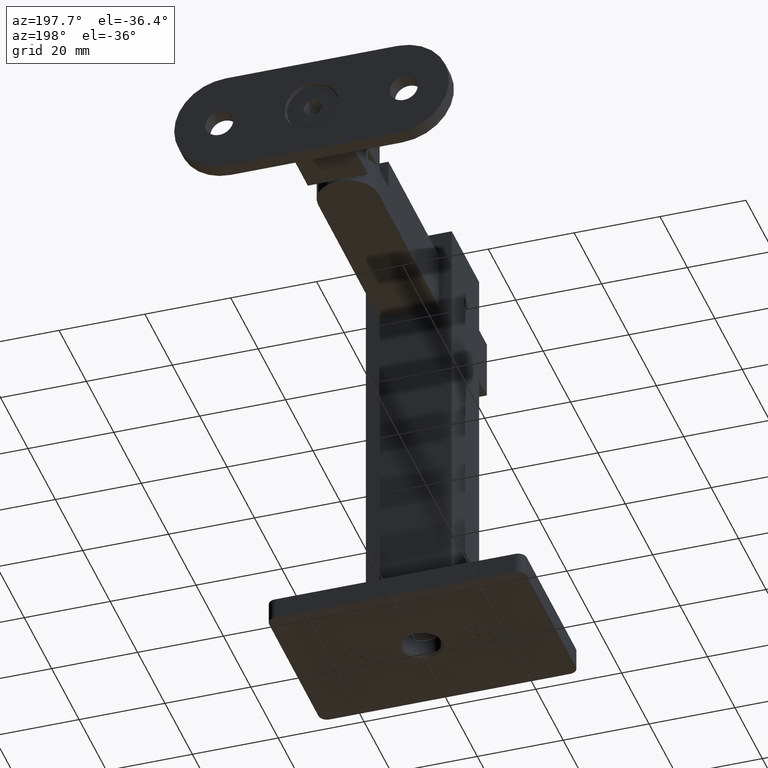
[diagram: clean part render]
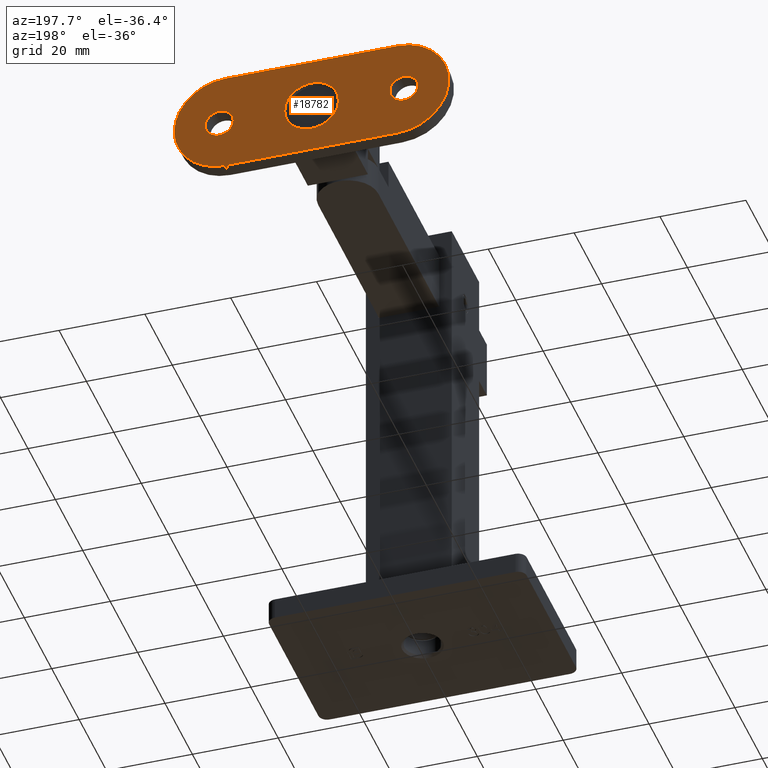
[diagram: same view with one face highlighted and labeled with its STEP entity id]
A machine part, auxiliary view. The second image highlights one B-rep face of the part: STEP entity #18782.
In plain terms, the highlighted planar face has unit normal (0, 1, 0).
Its self-contained STEP definition (entity closure, byte-faithful):
#128 = VECTOR ( 'NONE', #7599, 1000.000000000000000 ) ;
#256 = DIRECTION ( 'NONE',  ( 0.000000000000000000, -0.000000000000000000, 1.000000000000000000 ) ) ;
#320 = ORIENTED_EDGE ( 'NONE', *, *, #8067, .F. ) ;
#443 = CARTESIAN_POINT ( 'NONE',  ( 0.000000000000000000, 1.850000000000000089, -6.249999999999999112 ) ) ;
#999 = EDGE_CURVE ( 'NONE', #15415, #16751, #9626, .T. ) ;
#1553 = AXIS2_PLACEMENT_3D ( 'NONE', #19184, #4346, #14851 ) ;
#1718 = ORIENTED_EDGE ( 'NONE', *, *, #10989, .T. ) ;
#1857 = DIRECTION ( 'NONE',  ( 0.000000000000000000, 1.000000000000000000, 0.000000000000000000 ) ) ;
#1976 = DIRECTION ( 'NONE',  ( 0.000000000000000000, 1.000000000000000000, 0.000000000000000000 ) ) ;
#2360 = AXIS2_PLACEMENT_3D ( 'NONE', #13300, #21623, #256 ) ;
#2628 = VERTEX_POINT ( 'NONE', #25705 ) ;
#2666 = VERTEX_POINT ( 'NONE', #17616 ) ;
#3247 = VERTEX_POINT ( 'NONE', #10883 ) ;
#4019 = CARTESIAN_POINT ( 'NONE',  ( 1.195281743934044652E-15, 1.850000000000000089, 20.00000000000000355 ) ) ;
#4278 = EDGE_CURVE ( 'NONE', #2628, #7194, #5185, .T. ) ;
#4346 = DIRECTION ( 'NONE',  ( 0.000000000000000000, 1.000000000000000000, 0.000000000000000000 ) ) ;
#4489 = FACE_BOUND ( 'NONE', #10259, .T. ) ;
#4968 = EDGE_CURVE ( 'NONE', #16751, #15415, #18147, .T. ) ;
#5185 = CIRCLE ( 'NONE', #25901, 12.00000000000000000 ) ;
#5294 = ORIENTED_EDGE ( 'NONE', *, *, #4968, .F. ) ;
#5593 = LINE ( 'NONE', #22724, #27363 ) ;
#5640 = CARTESIAN_POINT ( 'NONE',  ( 0.000000000000000000, 1.850000000000000089, 0.000000000000000000 ) ) ;
#5845 = DIRECTION ( 'NONE',  ( 0.000000000000000000, 1.000000000000000000, 0.000000000000000000 ) ) ;
#6140 = EDGE_CURVE ( 'NONE', #3247, #26210, #22189, .T. ) ;
#6469 = EDGE_CURVE ( 'NONE', #24191, #14713, #5593, .T. ) ;
#6809 = AXIS2_PLACEMENT_3D ( 'NONE', #12070, #20651, #14186 ) ;
#6896 = DIRECTION ( 'NONE',  ( 0.000000000000000000, 1.000000000000000000, 0.000000000000000000 ) ) ;
#7188 = ORIENTED_EDGE ( 'NONE', *, *, #18530, .T. ) ;
#7194 = VERTEX_POINT ( 'NONE', #7783 ) ;
#7599 = DIRECTION ( 'NONE',  ( 0.000000000000000000, 0.000000000000000000, -1.000000000000000000 ) ) ;
#7783 = CARTESIAN_POINT ( 'NONE',  ( 0.000000000000000000, 1.850000000000000089, -32.00000000000000000 ) ) ;
#8067 = EDGE_CURVE ( 'NONE', #26210, #3247, #24905, .T. ) ;
#8182 = CARTESIAN_POINT ( 'NONE',  ( 12.00000000000000178, 1.850000000000000089, 20.00000000000000355 ) ) ;
#8851 = EDGE_CURVE ( 'NONE', #2666, #14738, #27280, .T. ) ;
#9036 = DIRECTION ( 'NONE',  ( 0.000000000000000000, 0.000000000000000000, 1.000000000000000000 ) ) ;
#9626 = CIRCLE ( 'NONE', #10613, 3.249999999999999556 ) ;
#9895 = CARTESIAN_POINT ( 'NONE',  ( 11.99999999999999645, 1.850000000000000089, 20.00000000000000355 ) ) ;
#10259 = EDGE_LOOP ( 'NONE', ( #320, #13514 ) ) ;
#10422 = CARTESIAN_POINT ( 'NONE',  ( 0.000000000000000000, 1.850000000000000089, 18.25000000000000000 ) ) ;
#10461 = CIRCLE ( 'NONE', #14995, 12.00000000000000000 ) ;
#10613 = AXIS2_PLACEMENT_3D ( 'NONE', #11971, #5845, #26966 ) ;
#10830 = ORIENTED_EDGE ( 'NONE', *, *, #24351, .T. ) ;
#10883 = CARTESIAN_POINT ( 'NONE',  ( 3.980102097228899218E-16, 1.850000000000000089, -18.25000000000000000 ) ) ;
#10989 = EDGE_CURVE ( 'NONE', #7194, #24191, #10461, .T. ) ;
#11206 = AXIS2_PLACEMENT_3D ( 'NONE', #4019, #1857, #16795 ) ;
#11489 = FACE_OUTER_BOUND ( 'NONE', #22314, .T. ) ;
#11909 = AXIS2_PLACEMENT_3D ( 'NONE', #26038, #6896, #9036 ) ;
#11971 = CARTESIAN_POINT ( 'NONE',  ( 0.000000000000000000, 1.850000000000000089, 21.50000000000000000 ) ) ;
#12070 = CARTESIAN_POINT ( 'NONE',  ( 0.000000000000000000, 1.850000000000000089, 0.000000000000000000 ) ) ;
#12132 = DIRECTION ( 'NONE',  ( 0.000000000000000000, 0.000000000000000000, 1.000000000000000000 ) ) ;
#12480 = FACE_BOUND ( 'NONE', #18401, .T. ) ;
#13138 = LINE ( 'NONE', #9895, #128 ) ;
#13300 = CARTESIAN_POINT ( 'NONE',  ( 0.000000000000000000, 1.850000000000000089, -20.00000000000000355 ) ) ;
#13313 = ORIENTED_EDGE ( 'NONE', *, *, #999, .F. ) ;
#13514 = ORIENTED_EDGE ( 'NONE', *, *, #6140, .F. ) ;
#14186 = DIRECTION ( 'NONE',  ( 0.000000000000000000, 0.000000000000000000, 1.000000000000000000 ) ) ;
#14697 = EDGE_LOOP ( 'NONE', ( #13313, #5294 ) ) ;
#14713 = VERTEX_POINT ( 'NONE', #14975 ) ;
#14738 = VERTEX_POINT ( 'NONE', #443 ) ;
#14748 = CARTESIAN_POINT ( 'NONE',  ( 0.000000000000000000, 1.850000000000000089, -20.00000000000000355 ) ) ;
#14851 = DIRECTION ( 'NONE',  ( 0.000000000000000000, 0.000000000000000000, 1.000000000000000000 ) ) ;
#14975 = CARTESIAN_POINT ( 'NONE',  ( -12.00000000000000355, 1.850000000000000089, 20.00000000000000355 ) ) ;
#14995 = AXIS2_PLACEMENT_3D ( 'NONE', #23602, #17332, #23877 ) ;
#15415 = VERTEX_POINT ( 'NONE', #10422 ) ;
#15469 = AXIS2_PLACEMENT_3D ( 'NONE', #5640, #18297, #12132 ) ;
#16076 = ORIENTED_EDGE ( 'NONE', *, *, #6469, .T. ) ;
#16078 = ORIENTED_EDGE ( 'NONE', *, *, #4278, .T. ) ;
#16102 = DIRECTION ( 'NONE',  ( 0.000000000000000000, 0.000000000000000000, 1.000000000000000000 ) ) ;
#16616 = CIRCLE ( 'NONE', #15469, 6.249999999999999112 ) ;
#16751 = VERTEX_POINT ( 'NONE', #22216 ) ;
#16795 = DIRECTION ( 'NONE',  ( 0.000000000000000000, 0.000000000000000000, 1.000000000000000000 ) ) ;
#17332 = DIRECTION ( 'NONE',  ( 0.000000000000000000, 1.000000000000000000, 0.000000000000000000 ) ) ;
#17616 = CARTESIAN_POINT ( 'NONE',  ( 7.654042494670956620E-16, 1.850000000000000089, 6.249999999999999112 ) ) ;
#17820 = FACE_BOUND ( 'NONE', #14697, .T. ) ;
#18147 = CIRCLE ( 'NONE', #11909, 3.249999999999999556 ) ;
#18297 = DIRECTION ( 'NONE',  ( -0.000000000000000000, -1.000000000000000000, -0.000000000000000000 ) ) ;
#18401 = EDGE_LOOP ( 'NONE', ( #10830, #24562 ) ) ;
#18530 = EDGE_CURVE ( 'NONE', #21179, #2628, #13138, .T. ) ;
#18782 = ADVANCED_FACE ( 'NONE', ( #12480, #4489, #11489, #17820 ), #19752, .T. ) ;
#19163 = DIRECTION ( 'NONE',  ( 0.000000000000000000, 0.000000000000000000, 1.000000000000000000 ) ) ;
#19184 = CARTESIAN_POINT ( 'NONE',  ( 0.000000000000000000, 1.850000000000000089, -21.50000000000000000 ) ) ;
#19384 = DIRECTION ( 'NONE',  ( 0.000000000000000000, 0.000000000000000000, 1.000000000000000000 ) ) ;
#19434 = AXIS2_PLACEMENT_3D ( 'NONE', #25958, #19657, #19384 ) ;
#19657 = DIRECTION ( 'NONE',  ( 0.000000000000000000, 1.000000000000000000, 0.000000000000000000 ) ) ;
#19752 = PLANE ( 'NONE',  #2360 ) ;
#20638 = CARTESIAN_POINT ( 'NONE',  ( 0.000000000000000000, 1.850000000000000089, -24.74999999999999645 ) ) ;
#20651 = DIRECTION ( 'NONE',  ( -0.000000000000000000, -1.000000000000000000, -0.000000000000000000 ) ) ;
#21179 = VERTEX_POINT ( 'NONE', #8182 ) ;
#21623 = DIRECTION ( 'NONE',  ( 0.000000000000000000, 1.000000000000000000, 0.000000000000000000 ) ) ;
#22035 = CARTESIAN_POINT ( 'NONE',  ( -12.00000000000000355, 1.850000000000000089, -20.00000000000000355 ) ) ;
#22189 = CIRCLE ( 'NONE', #19434, 3.249999999999999556 ) ;
#22216 = CARTESIAN_POINT ( 'NONE',  ( 3.980102097228899218E-16, 1.850000000000000089, 24.74999999999999645 ) ) ;
#22314 = EDGE_LOOP ( 'NONE', ( #16078, #1718, #16076, #23919, #7188 ) ) ;
#22658 = CIRCLE ( 'NONE', #11206, 11.99999999999999645 ) ;
#22724 = CARTESIAN_POINT ( 'NONE',  ( -12.00000000000000355, 1.850000000000000089, -20.00000000000000355 ) ) ;
#23602 = CARTESIAN_POINT ( 'NONE',  ( 0.000000000000000000, 1.850000000000000089, -20.00000000000000355 ) ) ;
#23877 = DIRECTION ( 'NONE',  ( 0.000000000000000000, 0.000000000000000000, 1.000000000000000000 ) ) ;
#23919 = ORIENTED_EDGE ( 'NONE', *, *, #24439, .T. ) ;
#24191 = VERTEX_POINT ( 'NONE', #22035 ) ;
#24351 = EDGE_CURVE ( 'NONE', #14738, #2666, #16616, .T. ) ;
#24439 = EDGE_CURVE ( 'NONE', #14713, #21179, #22658, .T. ) ;
#24562 = ORIENTED_EDGE ( 'NONE', *, *, #8851, .T. ) ;
#24905 = CIRCLE ( 'NONE', #1553, 3.249999999999999556 ) ;
#25705 = CARTESIAN_POINT ( 'NONE',  ( 11.99999999999999645, 1.850000000000000089, -20.00000000000000355 ) ) ;
#25901 = AXIS2_PLACEMENT_3D ( 'NONE', #14748, #1976, #19163 ) ;
#25958 = CARTESIAN_POINT ( 'NONE',  ( 0.000000000000000000, 1.850000000000000089, -21.50000000000000000 ) ) ;
#26038 = CARTESIAN_POINT ( 'NONE',  ( 0.000000000000000000, 1.850000000000000089, 21.50000000000000000 ) ) ;
#26210 = VERTEX_POINT ( 'NONE', #20638 ) ;
#26966 = DIRECTION ( 'NONE',  ( 0.000000000000000000, 0.000000000000000000, 1.000000000000000000 ) ) ;
#27280 = CIRCLE ( 'NONE', #6809, 6.249999999999999112 ) ;
#27363 = VECTOR ( 'NONE', #16102, 1000.000000000000000 ) ;